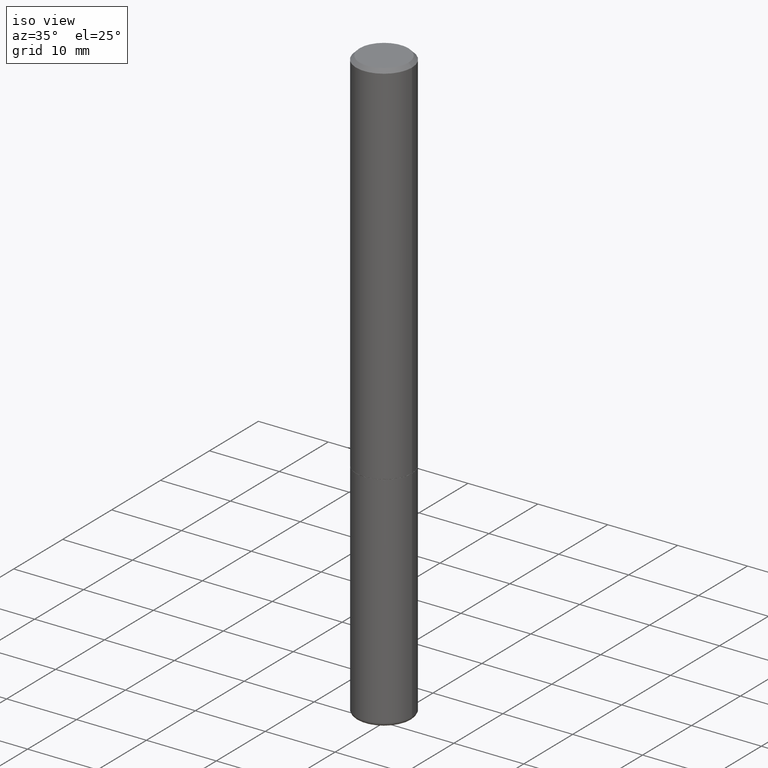
[diagram: clean part render]
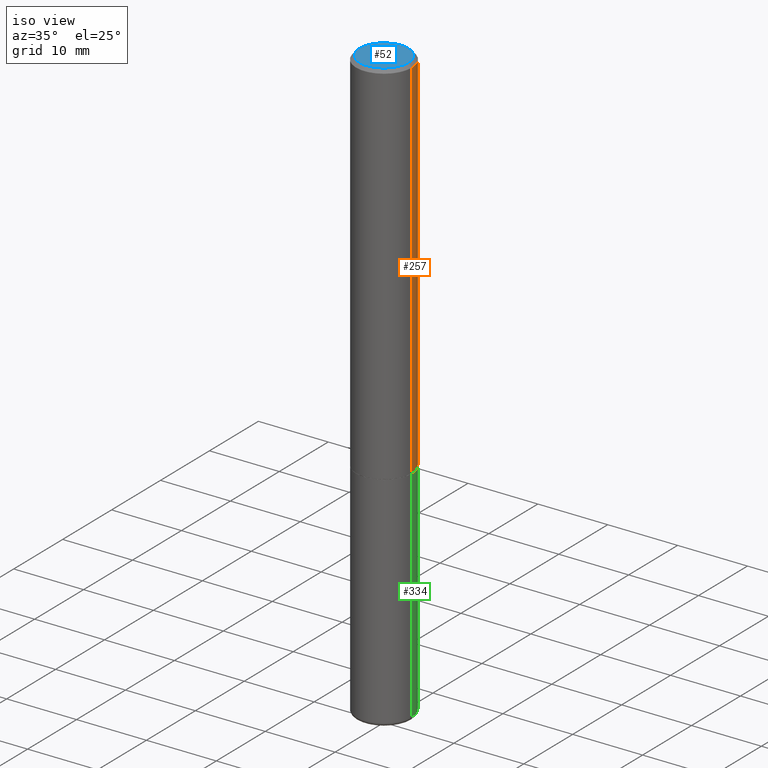
[diagram: same view with three faces highlighted in distinct colors, each labeled with its STEP entity id]
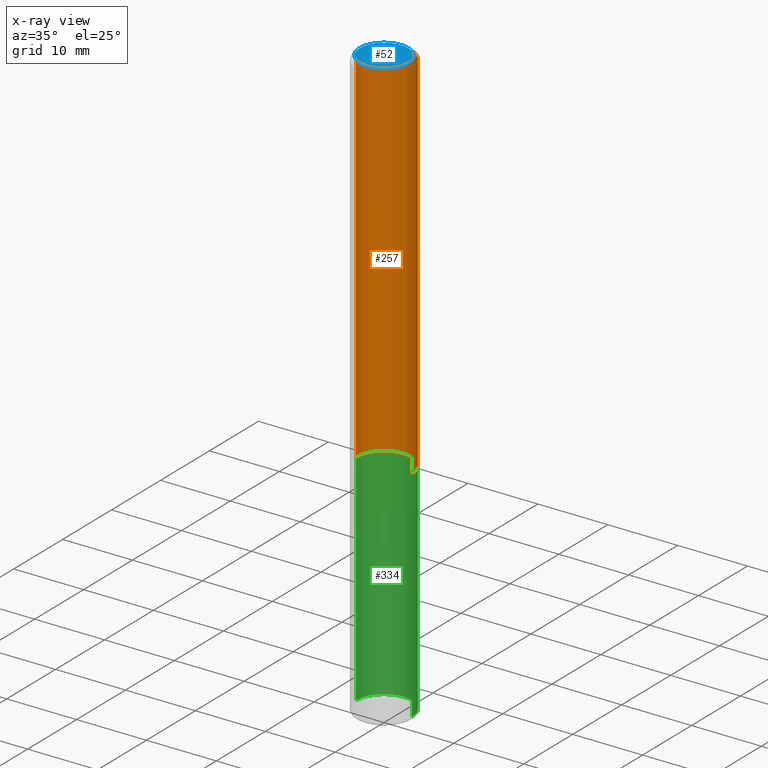
[diagram: x-ray of the same camera — body ghosted, the three highlighted faces saturated]
A machine part, iso view with three faces highlighted in distinct colors.
The next image is the same camera in x-ray (body ghosted, the three faces saturated) — at least one of them is partly hidden behind the body in this view.
Their STEP definitions:

[orange] entity #257 — the highlighted cylindrical surface (edge-blend (fillet) strip) has radius 4.0005 mm, axis along (-0, 0, 1).
#3 = DIRECTION ( 'NONE',  ( -2.445468806185136597E-29, 3.491481338843145583E-15, 1.000000000000000000 ) ) ;
#9 = LINE ( 'NONE', #318, #348 ) ;
#15 = ORIENTED_EDGE ( 'NONE', *, *, #253, .T. ) ;
#36 = DIRECTION ( 'NONE',  ( -2.445468806185136597E-29, 3.491481338843145583E-15, 1.000000000000000000 ) ) ;
#43 = VERTEX_POINT ( 'NONE', #268 ) ;
#45 = DIRECTION ( 'NONE',  ( 1.000000000000000000, -6.982962677686265922E-15, 0.000000000000000000 ) ) ;
#57 = CARTESIAN_POINT ( 'NONE',  ( -0.1575000000000000289, 1.029986994958724182E-15, -0.02000000000000003511 ) ) ;
#59 = EDGE_CURVE ( 'NONE', #248, #99, #167, .T. ) ;
#60 = DIRECTION ( 'NONE',  ( -2.445468806185136877E-29, 3.491481338843145188E-15, 1.000000000000000000 ) ) ;
#75 = CARTESIAN_POINT ( 'NONE',  ( 0.1575000000000001954, -8.381999250160736190E-15, -2.085699999999999665 ) ) ;
#77 = CIRCLE ( 'NONE', #86, 0.1575000000000000289 ) ;
#86 = AXIS2_PLACEMENT_3D ( 'NONE', #163, #36, #227 ) ;
#93 = AXIS2_PLACEMENT_3D ( 'NONE', #241, #3, #45 ) ;
#99 = VERTEX_POINT ( 'NONE', #236 ) ;
#131 = AXIS2_PLACEMENT_3D ( 'NONE', #199, #139, #230 ) ;
#139 = DIRECTION ( 'NONE',  ( -2.445468806185136597E-29, 3.491481338843145583E-15, 1.000000000000000000 ) ) ;
#140 = ORIENTED_EDGE ( 'NONE', *, *, #159, .T. ) ;
#143 = EDGE_CURVE ( 'NONE', #99, #208, #77, .T. ) ;
#159 = EDGE_CURVE ( 'NONE', #43, #208, #9, .T. ) ;
#163 = CARTESIAN_POINT ( 'NONE',  ( 4.890937612370281041E-31, -6.982962677686302702E-17, -0.02000000000000003511 ) ) ;
#165 = FACE_OUTER_BOUND ( 'NONE', #246, .T. ) ;
#167 = LINE ( 'NONE', #401, #202 ) ;
#199 = CARTESIAN_POINT ( 'NONE',  ( 0.000000000000000000, 0.000000000000000000, 0.000000000000000000 ) ) ;
#202 = VECTOR ( 'NONE', #260, 39.37007874015748143 ) ;
#208 = VERTEX_POINT ( 'NONE', #57 ) ;
#227 = DIRECTION ( 'NONE',  ( 1.000000000000000000, -6.982962677686267499E-15, 0.000000000000000000 ) ) ;
#230 = DIRECTION ( 'NONE',  ( 1.000000000000000000, -6.982962677686267499E-15, 4.876176775795936353E-29 ) ) ;
#236 = CARTESIAN_POINT ( 'NONE',  ( 0.1575000000000000289, -1.150358061425879472E-15, -0.02000000000000003511 ) ) ;
#241 = CARTESIAN_POINT ( 'NONE',  ( 5.100514289060338336E-29, -7.282182628425147921E-15, -2.085699999999999665 ) ) ;
#246 = EDGE_LOOP ( 'NONE', ( #15, #140, #343, #338 ) ) ;
#248 = VERTEX_POINT ( 'NONE', #75 ) ;
#253 = EDGE_CURVE ( 'NONE', #248, #43, #361, .T. ) ;
#257 = ADVANCED_FACE ( 'NONE', ( #165 ), #297, .T. ) ;
#260 = DIRECTION ( 'NONE',  ( -2.445468806185136877E-29, 3.491481338843145188E-15, 1.000000000000000000 ) ) ;
#268 = CARTESIAN_POINT ( 'NONE',  ( -0.1575000000000001954, -2.556901318778844062E-15, -2.085699999999999665 ) ) ;
#297 = CYLINDRICAL_SURFACE ( 'NONE', #131, 0.1575000000000000844 ) ;
#318 = CARTESIAN_POINT ( 'NONE',  ( -0.1575000000000000844, 1.119104808822158392E-15, -7.747322767151481189E-30 ) ) ;
#338 = ORIENTED_EDGE ( 'NONE', *, *, #59, .F. ) ;
#343 = ORIENTED_EDGE ( 'NONE', *, *, #143, .F. ) ;
#348 = VECTOR ( 'NONE', #60, 39.37007874015748143 ) ;
#361 = CIRCLE ( 'NONE', #93, 0.1575000000000001954 ) ;
#401 = CARTESIAN_POINT ( 'NONE',  ( 0.1575000000000000844, -1.099816621735587677E-15, 7.679978421878603638E-30 ) ) ;

[blue] entity #52 — the highlighted planar face has unit normal (0, -0, -1).
#7 = DIRECTION ( 'NONE',  ( 1.000000000000000000, -6.982962677686267499E-15, 4.874794762600771100E-29 ) ) ;
#33 = DIRECTION ( 'NONE',  ( 2.438088387897960049E-29, -3.491481338843145188E-15, -1.000000000000000000 ) ) ;
#52 = ADVANCED_FACE ( 'NONE', ( #160 ), #157, .F. ) ;
#68 = DIRECTION ( 'NONE',  ( -2.445468806185136597E-29, 3.491481338843145583E-15, 1.000000000000000000 ) ) ;
#87 = CARTESIAN_POINT ( 'NONE',  ( -4.906101647375532782E-45, 7.004612900788102525E-31, 2.006200870347193393E-16 ) ) ;
#100 = CARTESIAN_POINT ( 'NONE',  ( -4.906101647375532782E-45, 7.004612900788102525E-31, 2.006200870347193393E-16 ) ) ;
#107 = ORIENTED_EDGE ( 'NONE', *, *, #151, .T. ) ;
#110 = DIRECTION ( 'NONE',  ( -2.445468806185136597E-29, 3.491481338843145583E-15, 1.000000000000000000 ) ) ;
#114 = CIRCLE ( 'NONE', #161, 0.1374999999999997891 ) ;
#118 = AXIS2_PLACEMENT_3D ( 'NONE', #100, #68, #7 ) ;
#119 = CARTESIAN_POINT ( 'NONE',  ( -0.1374999999999997891, 9.950721815702925329E-16, 2.006200870347125108E-16 ) ) ;
#121 = DIRECTION ( 'NONE',  ( 1.000000000000000000, -6.982962677686267499E-15, 4.874794762600771100E-29 ) ) ;
#151 = EDGE_CURVE ( 'NONE', #204, #307, #319, .T. ) ;
#157 = PLANE ( 'NONE',  #188 ) ;
#160 = FACE_OUTER_BOUND ( 'NONE', #399, .T. ) ;
#161 = AXIS2_PLACEMENT_3D ( 'NONE', #87, #110, #121 ) ;
#188 = AXIS2_PLACEMENT_3D ( 'NONE', #266, #33, #356 ) ;
#204 = VERTEX_POINT ( 'NONE', #119 ) ;
#261 = CARTESIAN_POINT ( 'NONE',  ( 0.1374999999999997891, -1.046838268059731505E-15, 2.006200870347263405E-16 ) ) ;
#266 = CARTESIAN_POINT ( 'NONE',  ( 9.601573681818600950E-16, 0.1374999999999997891, -3.797686405735721404E-16 ) ) ;
#303 = ORIENTED_EDGE ( 'NONE', *, *, #392, .T. ) ;
#307 = VERTEX_POINT ( 'NONE', #261 ) ;
#319 = CIRCLE ( 'NONE', #118, 0.1374999999999997891 ) ;
#356 = DIRECTION ( 'NONE',  ( -1.000000000000000000, 6.982962677686265922E-15, -4.876176775795935793E-29 ) ) ;
#392 = EDGE_CURVE ( 'NONE', #307, #204, #114, .T. ) ;
#399 = EDGE_LOOP ( 'NONE', ( #107, #303 ) ) ;

[green] entity #334 — the highlighted cylindrical surface (edge-blend (fillet) strip) has radius 4.0005 mm, axis along (-0, 0, 1).
#8 = DIRECTION ( 'NONE',  ( 1.000000000000000000, -6.982962677686268288E-15, 0.000000000000000000 ) ) ;
#23 = VECTOR ( 'NONE', #358, 39.37007874015748143 ) ;
#27 = CARTESIAN_POINT ( 'NONE',  ( -0.1574999999999999456, -1.049635530924122081E-14, -3.326799999999999979 ) ) ;
#29 = CIRCLE ( 'NONE', #384, 0.1575000000000000289 ) ;
#39 = DIRECTION ( 'NONE',  ( 1.000000000000000000, -6.982962677686267499E-15, 4.876176775795935232E-29 ) ) ;
#40 = CIRCLE ( 'NONE', #311, 0.1575000000000000011 ) ;
#50 = ORIENTED_EDGE ( 'NONE', *, *, #409, .T. ) ;
#96 = DIRECTION ( 'NONE',  ( -2.445468806185136597E-29, 3.491481338843145583E-15, 1.000000000000000000 ) ) ;
#105 = ORIENTED_EDGE ( 'NONE', *, *, #324, .T. ) ;
#116 = EDGE_LOOP ( 'NONE', ( #50, #105, #242, #173 ) ) ;
#137 = VERTEX_POINT ( 'NONE', #259 ) ;
#173 = ORIENTED_EDGE ( 'NONE', *, *, #205, .F. ) ;
#205 = EDGE_CURVE ( 'NONE', #404, #137, #215, .T. ) ;
#211 = VERTEX_POINT ( 'NONE', #27 ) ;
#215 = LINE ( 'NONE', #381, #219 ) ;
#219 = VECTOR ( 'NONE', #378, 39.37007874015748143 ) ;
#226 = CYLINDRICAL_SURFACE ( 'NONE', #418, 0.1575000000000000289 ) ;
#229 = DIRECTION ( 'NONE',  ( 1.000000000000000000, -6.982962677686273810E-15, 0.000000000000000000 ) ) ;
#237 = CARTESIAN_POINT ( 'NONE',  ( 0.000000000000000000, 0.000000000000000000, 0.000000000000000000 ) ) ;
#242 = ORIENTED_EDGE ( 'NONE', *, *, #374, .F. ) ;
#245 = VERTEX_POINT ( 'NONE', #291 ) ;
#255 = CARTESIAN_POINT ( 'NONE',  ( 0.1574999999999999456, -1.271527673979896669E-14, -3.326799999999999979 ) ) ;
#259 = CARTESIAN_POINT ( 'NONE',  ( 0.1575000000000000011, -8.385490731499577619E-15, -2.086699999999999999 ) ) ;
#264 = CARTESIAN_POINT ( 'NONE',  ( -0.1575000000000000289, 1.119104808822157998E-15, -7.747322767151478386E-30 ) ) ;
#269 = LINE ( 'NONE', #264, #23 ) ;
#291 = CARTESIAN_POINT ( 'NONE',  ( -0.1575000000000000011, -8.331462305091527069E-15, -2.086699999999999999 ) ) ;
#311 = AXIS2_PLACEMENT_3D ( 'NONE', #402, #96, #8 ) ;
#324 = EDGE_CURVE ( 'NONE', #211, #245, #269, .T. ) ;
#334 = ADVANCED_FACE ( 'NONE', ( #387 ), #226, .T. ) ;
#358 = DIRECTION ( 'NONE',  ( -2.445468806185136877E-29, 3.491481338843145188E-15, 1.000000000000000000 ) ) ;
#359 = DIRECTION ( 'NONE',  ( -2.445468806185136597E-29, 3.491481338843145583E-15, 1.000000000000000000 ) ) ;
#363 = DIRECTION ( 'NONE',  ( -2.445468806185136597E-29, 3.491481338843145583E-15, 1.000000000000000000 ) ) ;
#374 = EDGE_CURVE ( 'NONE', #137, #245, #40, .T. ) ;
#378 = DIRECTION ( 'NONE',  ( -2.445468806185136877E-29, 3.491481338843145188E-15, 1.000000000000000000 ) ) ;
#381 = CARTESIAN_POINT ( 'NONE',  ( 0.1575000000000000289, -1.099816621735587283E-15, 7.679978421878599434E-30 ) ) ;
#384 = AXIS2_PLACEMENT_3D ( 'NONE', #385, #359, #229 ) ;
#385 = CARTESIAN_POINT ( 'NONE',  ( 8.135585624416713045E-29, -1.161546011806337842E-14, -3.326799999999999979 ) ) ;
#387 = FACE_OUTER_BOUND ( 'NONE', #116, .T. ) ;
#402 = CARTESIAN_POINT ( 'NONE',  ( 5.102959757866523939E-29, -7.285674109763990928E-15, -2.086699999999999999 ) ) ;
#404 = VERTEX_POINT ( 'NONE', #255 ) ;
#409 = EDGE_CURVE ( 'NONE', #404, #211, #29, .T. ) ;
#418 = AXIS2_PLACEMENT_3D ( 'NONE', #237, #363, #39 ) ;